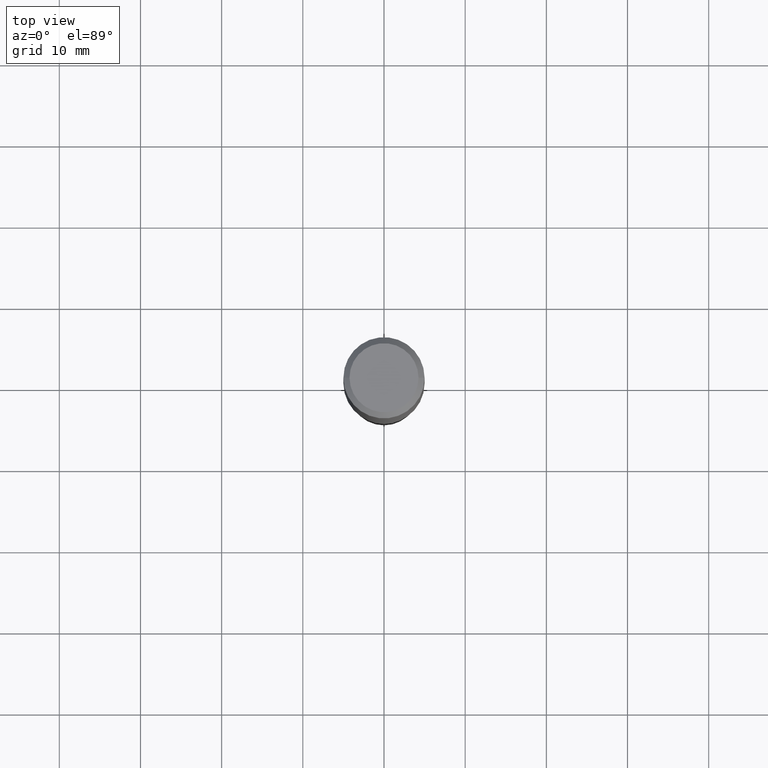
[diagram: clean part render]
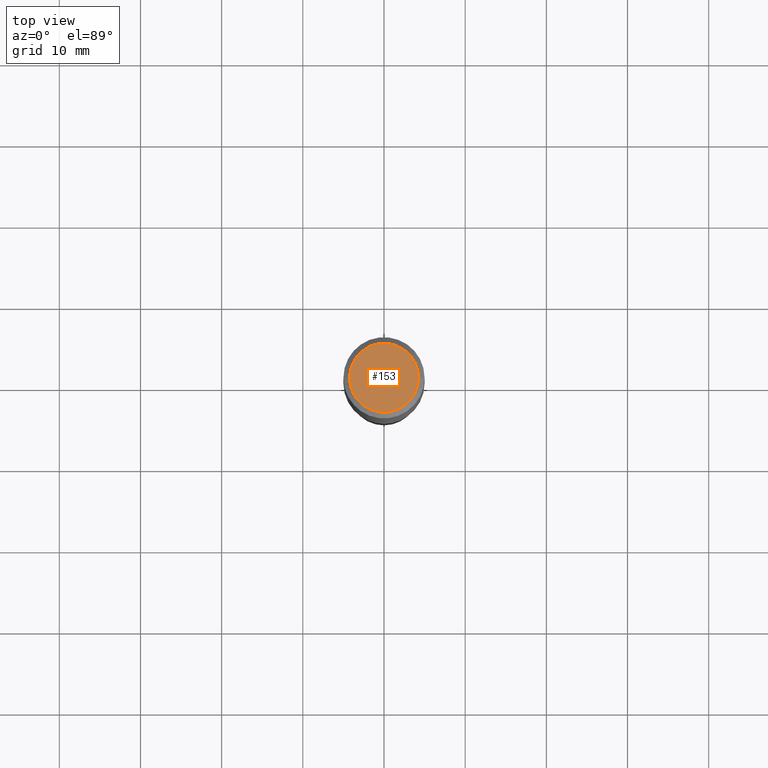
[diagram: same view with one face highlighted and labeled with its STEP entity id]
A machine part, top view. The second image highlights one B-rep face of the part: STEP entity #153.
In plain terms, the highlighted planar face has unit normal (0, -0, -1).
Its self-contained STEP definition (entity closure, byte-faithful):
#17 = DIRECTION ( 'NONE',  ( -2.445468806185136597E-29, 3.491481338843145583E-15, 1.000000000000000000 ) ) ;
#25 = CIRCLE ( 'NONE', #351, 0.1673224999999999851 ) ;
#74 = DIRECTION ( 'NONE',  ( -1.000000000000000000, 6.982962677686265922E-15, -4.876176775795935793E-29 ) ) ;
#77 = CIRCLE ( 'NONE', #145, 0.1673224999999999851 ) ;
#106 = CARTESIAN_POINT ( 'NONE',  ( -5.008488096090108951E-47, 7.150793614331948590E-33, 2.048068690724054183E-18 ) ) ;
#109 = CARTESIAN_POINT ( 'NONE',  ( -1.001697619218021790E-46, 1.430158722866389718E-32, 4.096137381448108366E-18 ) ) ;
#120 = DIRECTION ( 'NONE',  ( 2.438088387897960049E-29, -3.491481338843145188E-15, -1.000000000000000000 ) ) ;
#128 = CARTESIAN_POINT ( 'NONE',  ( -1.001697619218021790E-46, 1.430158722866389718E-32, 4.096137381448108366E-18 ) ) ;
#129 = CARTESIAN_POINT ( 'NONE',  ( -0.1673224999999999851, 1.219954130253505460E-15, 4.096137381439757534E-18 ) ) ;
#145 = AXIS2_PLACEMENT_3D ( 'NONE', #109, #306, #408 ) ;
#147 = VERTEX_POINT ( 'NONE', #430 ) ;
#153 = ADVANCED_FACE ( 'NONE', ( #323 ), #202, .F. ) ;
#158 = DIRECTION ( 'NONE',  ( 1.000000000000000000, -6.982962677686267499E-15, 4.876294436782262290E-29 ) ) ;
#178 = EDGE_CURVE ( 'NONE', #147, #380, #77, .T. ) ;
#180 = AXIS2_PLACEMENT_3D ( 'NONE', #106, #120, #74 ) ;
#192 = ORIENTED_EDGE ( 'NONE', *, *, #353, .T. ) ;
#202 = PLANE ( 'NONE',  #180 ) ;
#306 = DIRECTION ( 'NONE',  ( -2.445468806185136597E-29, 3.491481338843145583E-15, 1.000000000000000000 ) ) ;
#323 = FACE_OUTER_BOUND ( 'NONE', #343, .T. ) ;
#343 = EDGE_LOOP ( 'NONE', ( #192, #377 ) ) ;
#351 = AXIS2_PLACEMENT_3D ( 'NONE', #128, #17, #158 ) ;
#353 = EDGE_CURVE ( 'NONE', #380, #147, #25, .T. ) ;
#377 = ORIENTED_EDGE ( 'NONE', *, *, #178, .T. ) ;
#380 = VERTEX_POINT ( 'NONE', #129 ) ;
#408 = DIRECTION ( 'NONE',  ( 1.000000000000000000, -6.982962677686267499E-15, 4.876294436782262290E-29 ) ) ;
#430 = CARTESIAN_POINT ( 'NONE',  ( 0.1673224999999999851, -1.300749711163072594E-15, 4.096137381456741925E-18 ) ) ;